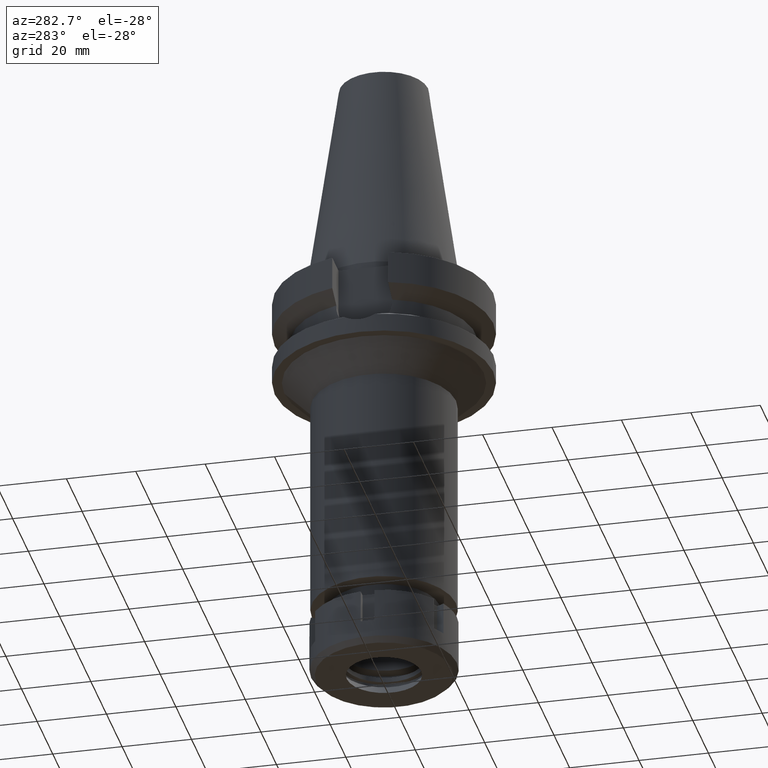
[diagram: clean part render]
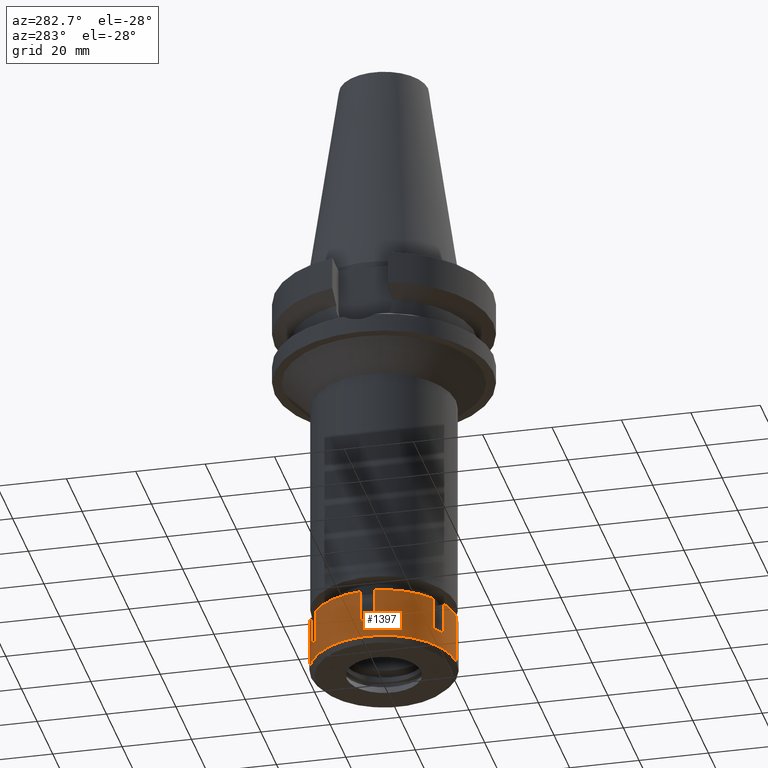
[diagram: same view with one face highlighted and labeled with its STEP entity id]
A machine part, auxiliary view. The second image highlights one B-rep face of the part: STEP entity #1397.
In plain terms, the highlighted cylindrical surface (partial cylindrical patch) has radius 21 mm, axis along (0, 0, -1).
Its self-contained STEP definition (entity closure, byte-faithful):
#7 = LINE ( 'NONE', #1388, #1580 ) ;
#16 = DIRECTION ( 'NONE',  ( 0.0000000000000000000, 0.0000000000000000000, -1.000000000000000000 ) ) ;
#25 = DIRECTION ( 'NONE',  ( 0.0000000000000000000, 0.0000000000000000000, 1.000000000000000000 ) ) ;
#28 = ORIENTED_EDGE ( 'NONE', *, *, #2428, .T. ) ;
#127 = ORIENTED_EDGE ( 'NONE', *, *, #1588, .F. ) ;
#129 = EDGE_CURVE ( 'NONE', #494, #3320, #842, .T. ) ;
#137 = VERTEX_POINT ( 'NONE', #1136 ) ;
#162 = VECTOR ( 'NONE', #1331, 1000.000000000000000 ) ;
#190 = DIRECTION ( 'NONE',  ( 0.0000000000000000000, 0.0000000000000000000, 1.000000000000000000 ) ) ;
#219 = AXIS2_PLACEMENT_3D ( 'NONE', #3184, #938, #1491 ) ;
#285 = AXIS2_PLACEMENT_3D ( 'NONE', #3077, #1679, #2809 ) ;
#383 = DIRECTION ( 'NONE',  ( -0.5802058708453158298, 0.8144698566777217597, 0.0000000000000000000 ) ) ;
#399 = CIRCLE ( 'NONE', #2871, 21.00000000000000711 ) ;
#402 = ORIENTED_EDGE ( 'NONE', *, *, #1485, .T. ) ;
#463 = VERTEX_POINT ( 'NONE', #962 ) ;
#494 = VERTEX_POINT ( 'NONE', #2427 ) ;
#544 = DIRECTION ( 'NONE',  ( -0.4152486510768949035, -0.9097079519157886818, 0.0000000000000000000 ) ) ;
#562 = CARTESIAN_POINT ( 'NONE',  ( 0.0000000000000000000, 0.0000000000000000000, 0.0000000000000000000 ) ) ;
#578 = CARTESIAN_POINT ( 'NONE',  ( 0.0000000000000000000, -21.00000000000000000, -14.50000000000000000 ) ) ;
#623 = VERTEX_POINT ( 'NONE', #1937 ) ;
#668 = CARTESIAN_POINT ( 'NONE',  ( -8.720221672615998898, -19.10386699022999935, -9.500000000000000000 ) ) ;
#774 = VERTEX_POINT ( 'NONE', #2838 ) ;
#842 = LINE ( 'NONE', #1979, #1986 ) ;
#846 = CARTESIAN_POINT ( 'NONE',  ( -8.720221672615000585, 19.10386699022999935, 0.0000000000000000000 ) ) ;
#863 = DIRECTION ( 'NONE',  ( 0.0000000000000000000, 0.0000000000000000000, -1.000000000000000000 ) ) ;
#864 = CIRCLE ( 'NONE', #1873, 20.99999999999999289 ) ;
#895 = CARTESIAN_POINT ( 'NONE',  ( -12.18432328774999895, -17.10386699022999935, -9.500000000000000000 ) ) ;
#906 = CARTESIAN_POINT ( 'NONE',  ( 0.0000000000000000000, 0.0000000000000000000, -9.500000000000000000 ) ) ;
#918 = FACE_OUTER_BOUND ( 'NONE', #1003, .T. ) ;
#932 = AXIS2_PLACEMENT_3D ( 'NONE', #3528, #190, #978 ) ;
#938 = DIRECTION ( 'NONE',  ( 0.0000000000000000000, 0.0000000000000000000, -1.000000000000000000 ) ) ;
#962 = CARTESIAN_POINT ( 'NONE',  ( 0.0000000000000000000, -21.00000000000000000, 0.0000000000000000000 ) ) ;
#978 = DIRECTION ( 'NONE',  ( 0.0000000000000000000, 1.000000000000000000, 0.0000000000000000000 ) ) ;
#1003 = EDGE_LOOP ( 'NONE', ( #1798, #402, #1063, #3491, #3026, #1285, #127, #3070, #3541, #28, #1022, #2295, #2110, #1898, #1840, #2736 ) ) ;
#1022 = ORIENTED_EDGE ( 'NONE', *, *, #3261, .F. ) ;
#1025 = LINE ( 'NONE', #1838, #1637 ) ;
#1027 = VERTEX_POINT ( 'NONE', #895 ) ;
#1063 = ORIENTED_EDGE ( 'NONE', *, *, #2358, .T. ) ;
#1136 = CARTESIAN_POINT ( 'NONE',  ( -12.18432328774999895, -17.10386699022999935, 0.0000000000000000000 ) ) ;
#1181 = VERTEX_POINT ( 'NONE', #578 ) ;
#1284 = DIRECTION ( 'NONE',  ( 0.0000000000000000000, 0.0000000000000000000, -1.000000000000000000 ) ) ;
#1285 = ORIENTED_EDGE ( 'NONE', *, *, #3601, .T. ) ;
#1302 = DIRECTION ( 'NONE',  ( 0.0000000000000000000, 0.0000000000000000000, -1.000000000000000000 ) ) ;
#1331 = DIRECTION ( 'NONE',  ( 0.0000000000000000000, 0.0000000000000000000, 1.000000000000000000 ) ) ;
#1333 = LINE ( 'NONE', #3032, #2647 ) ;
#1348 = CIRCLE ( 'NONE', #932, 21.00000000000000000 ) ;
#1388 = CARTESIAN_POINT ( 'NONE',  ( 0.0000000000000000000, 21.00000000000000000, 0.0000000000000000000 ) ) ;
#1397 = ADVANCED_FACE ( 'NONE', ( #918 ), #3168, .T. ) ;
#1485 = EDGE_CURVE ( 'NONE', #2475, #1860, #399, .T. ) ;
#1491 = DIRECTION ( 'NONE',  ( 0.0000000000000000000, -1.000000000000000000, 0.0000000000000000000 ) ) ;
#1553 = CARTESIAN_POINT ( 'NONE',  ( -12.18432328774999895, 17.10386699022999935, 0.0000000000000000000 ) ) ;
#1580 = VECTOR ( 'NONE', #863, 1000.000000000000000 ) ;
#1588 = EDGE_CURVE ( 'NONE', #3117, #623, #1610, .T. ) ;
#1595 = DIRECTION ( 'NONE',  ( 0.0000000000000000000, 0.0000000000000000000, -1.000000000000000000 ) ) ;
#1610 = LINE ( 'NONE', #2744, #162 ) ;
#1621 = EDGE_CURVE ( 'NONE', #463, #1181, #1025, .T. ) ;
#1627 = CARTESIAN_POINT ( 'NONE',  ( 0.0000000000000000000, 21.00000000000000000, -14.50000000000000000 ) ) ;
#1637 = VECTOR ( 'NONE', #1284, 1000.000000000000000 ) ;
#1654 = EDGE_CURVE ( 'NONE', #137, #1027, #3534, .T. ) ;
#1679 = DIRECTION ( 'NONE',  ( 0.0000000000000000000, 0.0000000000000000000, -1.000000000000000000 ) ) ;
#1689 = CARTESIAN_POINT ( 'NONE',  ( 0.0000000000000000000, 21.00000000000000000, 0.0000000000000000000 ) ) ;
#1696 = AXIS2_PLACEMENT_3D ( 'NONE', #3382, #2908, #383 ) ;
#1704 = CARTESIAN_POINT ( 'NONE',  ( 0.0000000000000000000, 0.0000000000000000000, 0.0000000000000000000 ) ) ;
#1798 = ORIENTED_EDGE ( 'NONE', *, *, #3353, .F. ) ;
#1810 = AXIS2_PLACEMENT_3D ( 'NONE', #3130, #2247, #544 ) ;
#1832 = LINE ( 'NONE', #2728, #1946 ) ;
#1838 = CARTESIAN_POINT ( 'NONE',  ( 0.0000000000000000000, -21.00000000000000000, 0.0000000000000000000 ) ) ;
#1840 = ORIENTED_EDGE ( 'NONE', *, *, #2886, .F. ) ;
#1860 = VERTEX_POINT ( 'NONE', #1689 ) ;
#1873 = AXIS2_PLACEMENT_3D ( 'NONE', #906, #3177, #2564 ) ;
#1898 = ORIENTED_EDGE ( 'NONE', *, *, #3479, .T. ) ;
#1913 = CARTESIAN_POINT ( 'NONE',  ( -12.18432328774999895, 17.10386699022999935, -9.500000000000000000 ) ) ;
#1924 = EDGE_CURVE ( 'NONE', #774, #3320, #864, .T. ) ;
#1937 = CARTESIAN_POINT ( 'NONE',  ( -8.720221672615998898, -19.10386699022999935, 0.0000000000000000000 ) ) ;
#1946 = VECTOR ( 'NONE', #1595, 1000.000000000000000 ) ;
#1955 = LINE ( 'NONE', #2562, #3107 ) ;
#1979 = CARTESIAN_POINT ( 'NONE',  ( -20.90454496036999998, 2.000000000000000000, 0.0000000000000000000 ) ) ;
#1986 = VECTOR ( 'NONE', #16, 1000.000000000000000 ) ;
#1990 = EDGE_CURVE ( 'NONE', #3347, #2565, #2992, .T. ) ;
#2061 = CIRCLE ( 'NONE', #285, 20.99999999999999645 ) ;
#2067 = AXIS2_PLACEMENT_3D ( 'NONE', #562, #3118, #3376 ) ;
#2110 = ORIENTED_EDGE ( 'NONE', *, *, #129, .F. ) ;
#2243 = AXIS2_PLACEMENT_3D ( 'NONE', #1704, #3359, #3051 ) ;
#2247 = DIRECTION ( 'NONE',  ( 0.0000000000000000000, 0.0000000000000000000, -1.000000000000000000 ) ) ;
#2295 = ORIENTED_EDGE ( 'NONE', *, *, #1924, .T. ) ;
#2320 = EDGE_CURVE ( 'NONE', #3117, #1027, #2405, .T. ) ;
#2358 = EDGE_CURVE ( 'NONE', #1860, #3238, #7, .T. ) ;
#2404 = CARTESIAN_POINT ( 'NONE',  ( -20.90454496036999998, -2.000000000000000000, 0.0000000000000000000 ) ) ;
#2405 = CIRCLE ( 'NONE', #1810, 21.00000000000000711 ) ;
#2427 = CARTESIAN_POINT ( 'NONE',  ( -20.90454496036999998, 2.000000000000000000, 0.0000000000000000000 ) ) ;
#2428 = EDGE_CURVE ( 'NONE', #137, #3212, #2061, .T. ) ;
#2462 = DIRECTION ( 'NONE',  ( -0.4152486510768949035, 0.9097079519157886818, 0.0000000000000000000 ) ) ;
#2464 = DIRECTION ( 'NONE',  ( 0.0000000000000000000, 0.0000000000000000000, 1.000000000000000000 ) ) ;
#2475 = VERTEX_POINT ( 'NONE', #846 ) ;
#2562 = CARTESIAN_POINT ( 'NONE',  ( -12.18432328774999895, 17.10386699022999935, -9.500000000000000000 ) ) ;
#2564 = DIRECTION ( 'NONE',  ( -0.9954545219222313834, -0.09523809523810303213, 0.0000000000000000000 ) ) ;
#2565 = VERTEX_POINT ( 'NONE', #3533 ) ;
#2647 = VECTOR ( 'NONE', #2464, 1000.000000000000000 ) ;
#2728 = CARTESIAN_POINT ( 'NONE',  ( -8.720221672615000585, 19.10386699022999935, 0.0000000000000000000 ) ) ;
#2736 = ORIENTED_EDGE ( 'NONE', *, *, #1990, .T. ) ;
#2744 = CARTESIAN_POINT ( 'NONE',  ( -8.720221672615000585, -19.10386699022999935, -9.500000000000000000 ) ) ;
#2809 = DIRECTION ( 'NONE',  ( -0.5802058708454290725, -0.8144698566776411575, 0.0000000000000000000 ) ) ;
#2838 = CARTESIAN_POINT ( 'NONE',  ( -20.90454496036999998, -2.000000000000000000, -9.500000000000000000 ) ) ;
#2871 = AXIS2_PLACEMENT_3D ( 'NONE', #3236, #3197, #2462 ) ;
#2886 = EDGE_CURVE ( 'NONE', #3347, #3108, #1955, .T. ) ;
#2908 = DIRECTION ( 'NONE',  ( 0.0000000000000000000, 0.0000000000000000000, -1.000000000000000000 ) ) ;
#2929 = CARTESIAN_POINT ( 'NONE',  ( -12.18432328774999895, -17.10386699022999935, 0.0000000000000000000 ) ) ;
#2992 = CIRCLE ( 'NONE', #1696, 21.00000000000000711 ) ;
#3026 = ORIENTED_EDGE ( 'NONE', *, *, #1621, .F. ) ;
#3032 = CARTESIAN_POINT ( 'NONE',  ( -20.90454496036999998, -2.000000000000000000, -9.500000000000000000 ) ) ;
#3051 = DIRECTION ( 'NONE',  ( -0.9954545219222313834, 0.09523809523810303213, 0.0000000000000000000 ) ) ;
#3070 = ORIENTED_EDGE ( 'NONE', *, *, #2320, .T. ) ;
#3077 = CARTESIAN_POINT ( 'NONE',  ( 0.0000000000000000000, 0.0000000000000000000, 0.0000000000000000000 ) ) ;
#3100 = VECTOR ( 'NONE', #1302, 1000.000000000000000 ) ;
#3107 = VECTOR ( 'NONE', #25, 1000.000000000000000 ) ;
#3108 = VERTEX_POINT ( 'NONE', #1553 ) ;
#3113 = CIRCLE ( 'NONE', #2067, 21.00000000000000000 ) ;
#3117 = VERTEX_POINT ( 'NONE', #668 ) ;
#3118 = DIRECTION ( 'NONE',  ( 0.0000000000000000000, 0.0000000000000000000, -1.000000000000000000 ) ) ;
#3130 = CARTESIAN_POINT ( 'NONE',  ( 0.0000000000000000000, 0.0000000000000000000, -9.500000000000000000 ) ) ;
#3168 = CYLINDRICAL_SURFACE ( 'NONE', #219, 21.00000000000000000 ) ;
#3177 = DIRECTION ( 'NONE',  ( 0.0000000000000000000, 0.0000000000000000000, -1.000000000000000000 ) ) ;
#3184 = CARTESIAN_POINT ( 'NONE',  ( 0.0000000000000000000, 0.0000000000000000000, 0.0000000000000000000 ) ) ;
#3197 = DIRECTION ( 'NONE',  ( 0.0000000000000000000, 0.0000000000000000000, -1.000000000000000000 ) ) ;
#3212 = VERTEX_POINT ( 'NONE', #2404 ) ;
#3236 = CARTESIAN_POINT ( 'NONE',  ( 0.0000000000000000000, 0.0000000000000000000, 0.0000000000000000000 ) ) ;
#3238 = VERTEX_POINT ( 'NONE', #1627 ) ;
#3261 = EDGE_CURVE ( 'NONE', #774, #3212, #1333, .T. ) ;
#3320 = VERTEX_POINT ( 'NONE', #3502 ) ;
#3331 = EDGE_CURVE ( 'NONE', #3238, #1181, #1348, .T. ) ;
#3345 = CIRCLE ( 'NONE', #2243, 20.99999999999999289 ) ;
#3347 = VERTEX_POINT ( 'NONE', #1913 ) ;
#3353 = EDGE_CURVE ( 'NONE', #2475, #2565, #1832, .T. ) ;
#3359 = DIRECTION ( 'NONE',  ( 0.0000000000000000000, 0.0000000000000000000, -1.000000000000000000 ) ) ;
#3376 = DIRECTION ( 'NONE',  ( 0.0000000000000000000, -1.000000000000000000, 0.0000000000000000000 ) ) ;
#3382 = CARTESIAN_POINT ( 'NONE',  ( 0.0000000000000000000, 0.0000000000000000000, -9.500000000000000000 ) ) ;
#3479 = EDGE_CURVE ( 'NONE', #494, #3108, #3345, .T. ) ;
#3491 = ORIENTED_EDGE ( 'NONE', *, *, #3331, .T. ) ;
#3502 = CARTESIAN_POINT ( 'NONE',  ( -20.90454496036999998, 2.000000000000000000, -9.500000000000000000 ) ) ;
#3528 = CARTESIAN_POINT ( 'NONE',  ( 0.0000000000000000000, 0.0000000000000000000, -14.50000000000000000 ) ) ;
#3533 = CARTESIAN_POINT ( 'NONE',  ( -8.720221672615000585, 19.10386699022999935, -9.500000000000000000 ) ) ;
#3534 = LINE ( 'NONE', #2929, #3100 ) ;
#3541 = ORIENTED_EDGE ( 'NONE', *, *, #1654, .F. ) ;
#3601 = EDGE_CURVE ( 'NONE', #463, #623, #3113, .T. ) ;